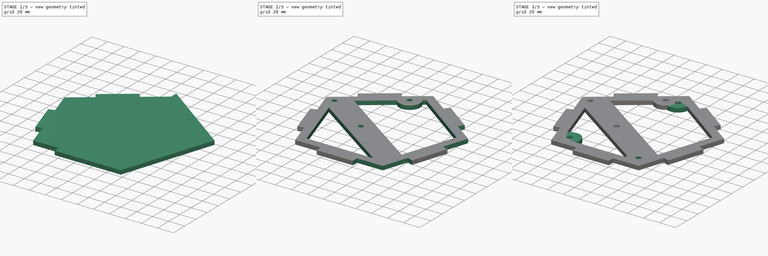
[diagram: build sequence overview — one tinted view per stage of 3, left to right]
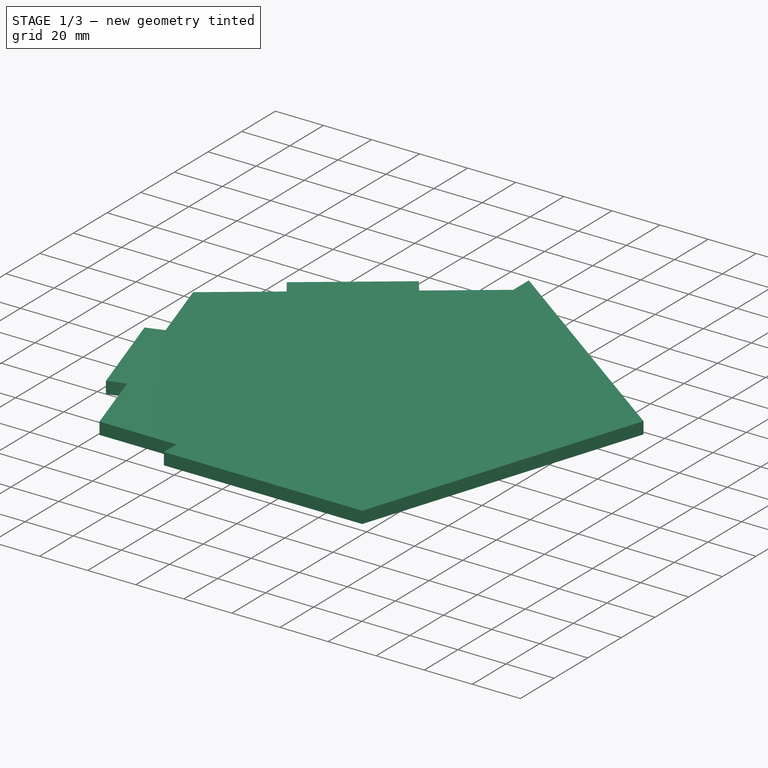
[diagram: stage 1 of 3 — iso view after this stage's code; geometry added in this stage tinted green]
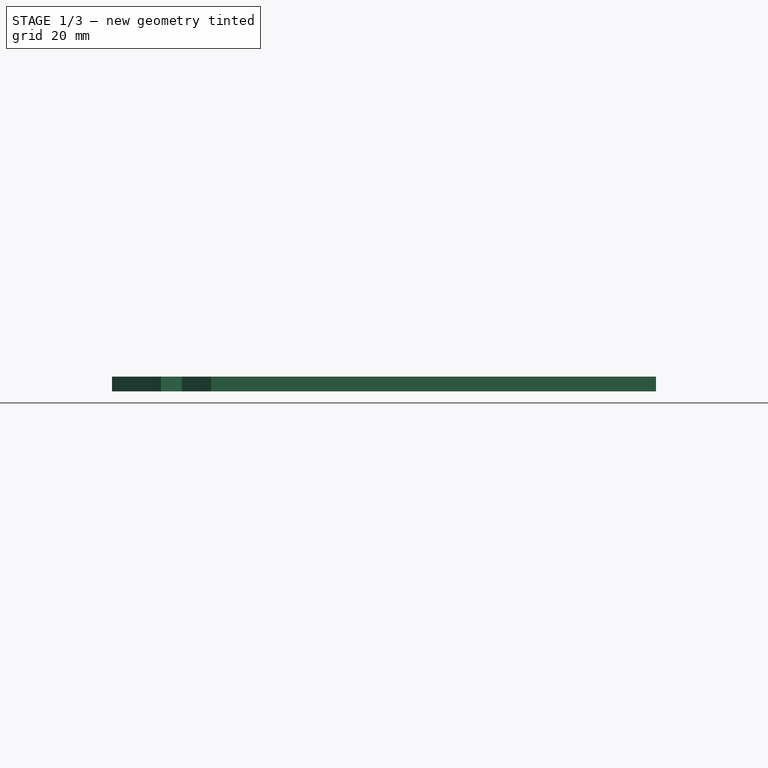
[diagram: stage 1 of 3 — front view after this stage's code; geometry added in this stage tinted green]
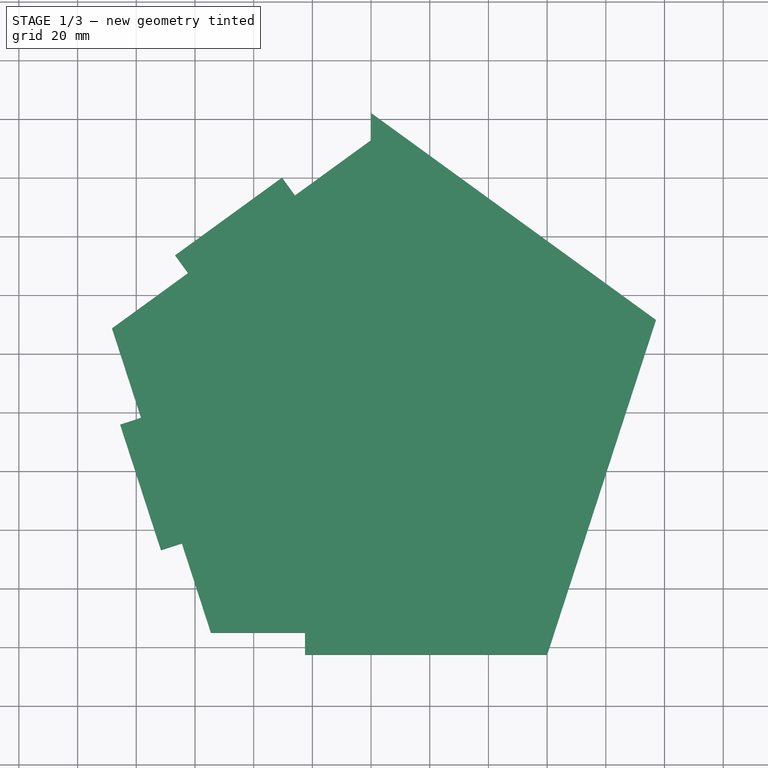
[diagram: stage 1 of 3 — top view after this stage's code; geometry added in this stage tinted green]
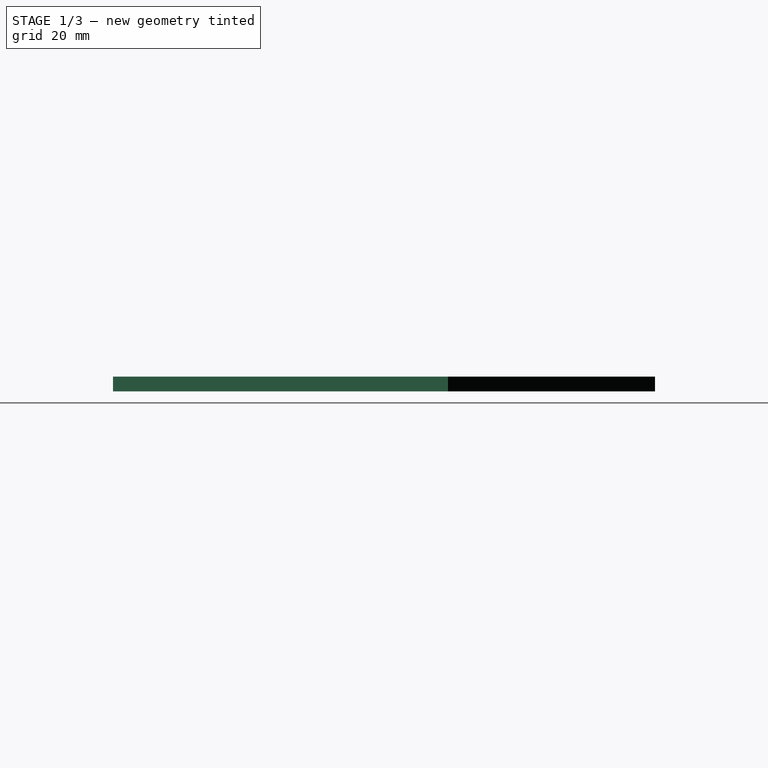
[diagram: stage 1 of 3 — right view after this stage's code; geometry added in this stage tinted green]
FCSTD DOCUMENT  (FreeCAD 0.15R4671 (Git))
Label: etageInterieur
License: All rights reserved
LicenseURL: http://fr.wikipedia.org/wiki/<copyright redacted>
objects: Sketcher::SketchObject×6, PartDesign::Pocket×4, PartDesign::Pad×2, PartDesign::Mirrored×1
note: 19 computed .brp shape members not serialized (recipe doc carries the construction recipe); baked Part::Feature solids carry a one-line shape summary decoded from their .brp

FEATURE [Sketcher::SketchObject] Sketch  label="Pentagone_Sketch"
  sketch-geometry (6):
    g0: LineSegment StartX=0 StartY=102.078 StartZ=0 EndX=-97.082 EndY=31.5439 EndZ=0
    g1: LineSegment StartX=-97.082 StartY=31.5439 StartZ=0 EndX=-60 EndY=-82.5829 EndZ=0
    g2: LineSegment StartX=-60 StartY=-82.5829 StartZ=0 EndX=60 EndY=-82.5829 EndZ=0
    g3: LineSegment StartX=60 StartY=-82.5829 StartZ=0 EndX=97.082 EndY=31.5439 EndZ=0
    g4: LineSegment StartX=97.082 StartY=31.5439 StartZ=0 EndX=0 EndY=102.078 EndZ=0
    g5: Circle [constr] CenterX=0 CenterY=0 CenterZ=0 NormalX=0 NormalY=0 NormalZ=1 Radius=102.078
  constraints (15):
    c: Coincident(g0,g1)
    c: Coincident(g1,g2)
    c: Coincident(g2,g3)
    c: Coincident(g3,g4)
    c: Coincident(g4,g0)
    c: Equal(g0, g1-g4) x4
    c: PointOnObject(g0,g5)
    c: PointOnObject(g1,g5)
    c: PointOnObject(g2,g5)
    c: PointOnObject(g3,g5)
    c: PointOnObject(g4,g5)
    c: Coincident(g2,g-1)
    c: Distance(g0) = 120
    c: Coincident(g5,g-1)
    c: PointOnObject(g0,g-2)
FEATURE [PartDesign::Pad] Pad  label="Pentagone_Pad"
  Length = 5
  Length2 = 100
  Sketch = -> Sketch
  Type = 0
FEATURE [Sketcher::SketchObject] Sketch001
  ExternalGeometry = -> [Pad]
  Placement = pos=(0,0,5) rot=(0,0,1;0rad)
  Support = -> Pad [Face7]
  sketch-geometry (17):
    g0: LineSegment StartX=-97.082 StartY=31.5439 StartZ=0 EndX=-66.7439 EndY=53.5858 EndZ=0
    g1: LineSegment StartX=-66.7439 StartY=53.5858 StartZ=0 EndX=-62.3355 EndY=47.5182 EndZ=0
    g2: LineSegment StartX=-25.9297 StartY=73.9685 StartZ=0 EndX=-30.3381 EndY=80.0362 EndZ=0
    g3: LineSegment StartX=-30.3381 StartY=80.0362 StartZ=0 EndX=0 EndY=102.078 EndZ=0
    g4: LineSegment StartX=-78.361 StartY=-1.80313 StartZ=0 EndX=-85.4939 EndY=-4.12075 EndZ=0
    g5: LineSegment StartX=-85.4939 StartY=-4.12075 StartZ=0 EndX=-97.082 EndY=31.5439 EndZ=0
    g6: LineSegment StartX=-71.5881 StartY=-46.9183 StartZ=0 EndX=-64.4552 EndY=-44.6007 EndZ=0
    g7: LineSegment StartX=-60 StartY=-82.5829 StartZ=0 EndX=-71.5881 EndY=-46.9183 EndZ=0
    g8: LineSegment StartX=-22.5 StartY=-75.0829 StartZ=0 EndX=-22.5 EndY=-82.5829 EndZ=0
    g9: LineSegment StartX=0 StartY=92.8076 StartZ=0 EndX=0 EndY=102.078 EndZ=0
    g10: LineSegment StartX=-25.9297 StartY=73.9685 StartZ=0 EndX=0 EndY=92.8076 EndZ=0
    g11: LineSegment StartX=-62.3355 StartY=47.5182 StartZ=0 EndX=-88.2653 EndY=28.6791 EndZ=0
    g12: LineSegment StartX=-78.361 StartY=-1.80313 StartZ=0 EndX=-88.2653 EndY=28.6791 EndZ=0
    g13: LineSegment StartX=-64.4552 StartY=-44.6007 StartZ=0 EndX=-54.5509 EndY=-75.0829 EndZ=0
    g14: LineSegment StartX=-22.5 StartY=-75.0829 StartZ=0 EndX=-54.5509 EndY=-75.0829 EndZ=0
    g15: LineSegment StartX=-30.3381 StartY=80.0362 StartZ=0 EndX=0 EndY=102.078 EndZ=0
    g16: LineSegment StartX=-60 StartY=-82.5829 StartZ=0 EndX=-22.5 EndY=-82.5829 EndZ=0
  constraints (49):
    c: PointOnObject(g0,g-3)
    c: Coincident(g0,g1)
    c: Perpendicular(g-3,g1)
    c: Distance(g1) = 7.5
    c: PointOnObject(g2,g-3)
    c: Coincident(g2,g3)
    c: Equal(g1,g2)
    c: PointOnObject(g4,g-4)
    c: Coincident(g4,g5)
    c: PointOnObject(g6,g-4)
    c: Coincident(g7,g6)
    c: Perpendicular(g-4,g6)
    c: Vertical(g8)
    c: PointOnObject(g9,g-2)
    c: Distance(g2,g1) = 45
    c: Coincident(g9,g-3)
    c: Coincident(g10,g2)
    c: Coincident(g10,g9)
    c: Coincident(g11,g1)
    c: Perpendicular(g10,g2)
    c: Perpendicular(g11,g1)
    c: Coincident(g12,g4)
    c: Perpendicular(g12,g4)
    c: Coincident(g13,g6)
    c: Coincident(g14,g8)
    c: Horizontal(g14)
    c: Perpendicular(g6,g13)
    c: Coincident(g11,g12)
    c: Perpendicular(g-4,g4)
    c: Perpendicular(g-3,g2)
    c: Coincident(g13,g14)
    c: Equal(g2,g1)
    c: Equal(g1,g4)
    c: Equal(g4,g6)
    c: Equal(g6,g8)
    c: Equal(g11,g10)
    c: Distance(g4,g6) = 45
    c: Equal(g12,g13)
    c: Equal(g14,g13)
    c: Coincident(g15,g2)
    c: Coincident(g15,g9)
    c: PointOnObject(g8,g-5)
    c: Coincident(g0,g-4)
    c: Coincident(g5,g0)
    c: Coincident(g3,g9)
    c: Coincident(g7,g-5)
    c: Horizontal(g16)
    c: Coincident(g16,g8)
    c: Coincident(g16,g7)
FEATURE [PartDesign::Pocket] Pocket  label="AttachLeft_Pocket"
  Length = 5
  Sketch = -> Sketch001
  Type = 1
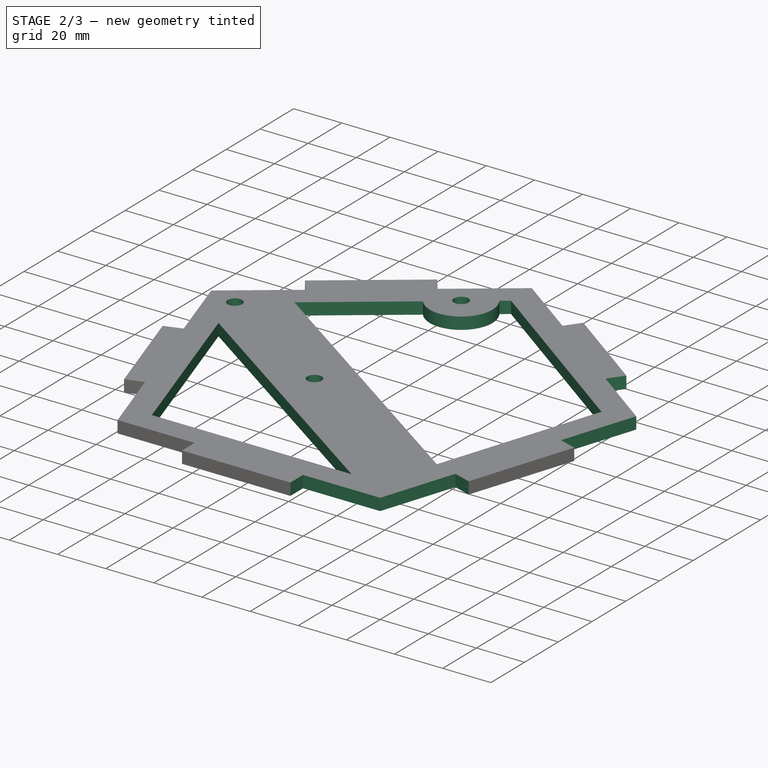
[diagram: stage 2 of 3 — iso view after this stage's code; geometry added in this stage tinted green]
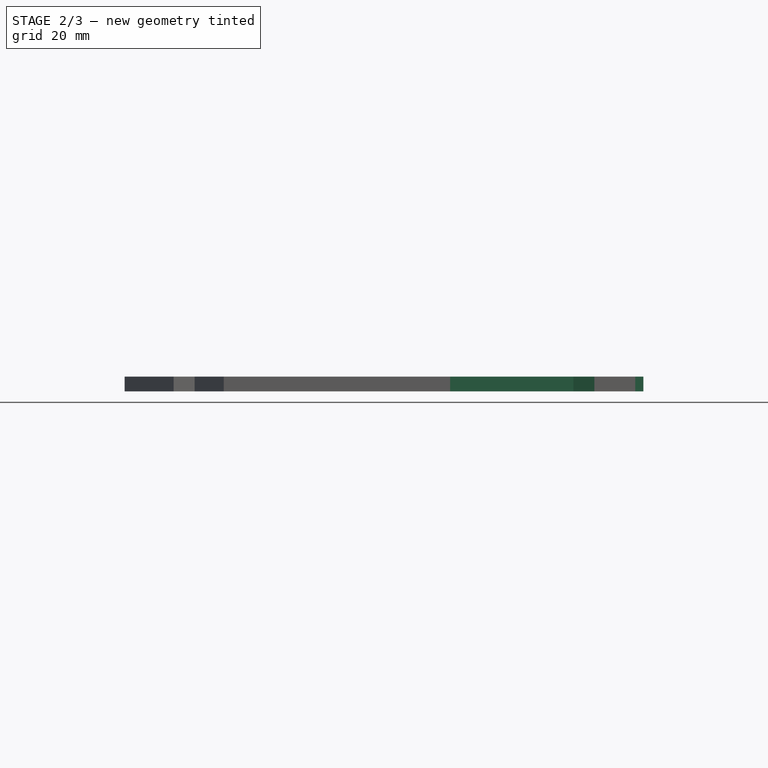
[diagram: stage 2 of 3 — front view after this stage's code; geometry added in this stage tinted green]
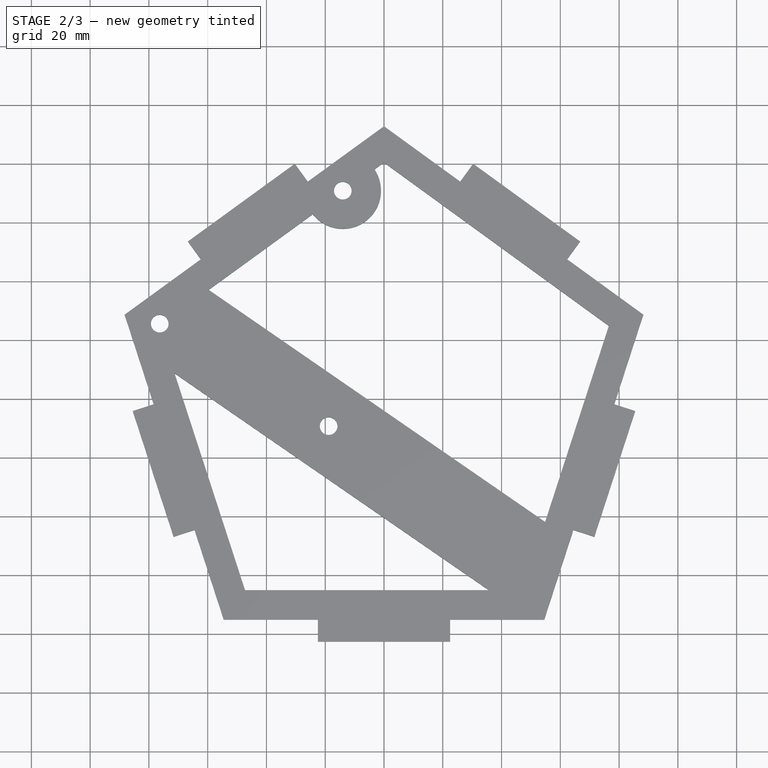
[diagram: stage 2 of 3 — top view after this stage's code; geometry added in this stage tinted green]
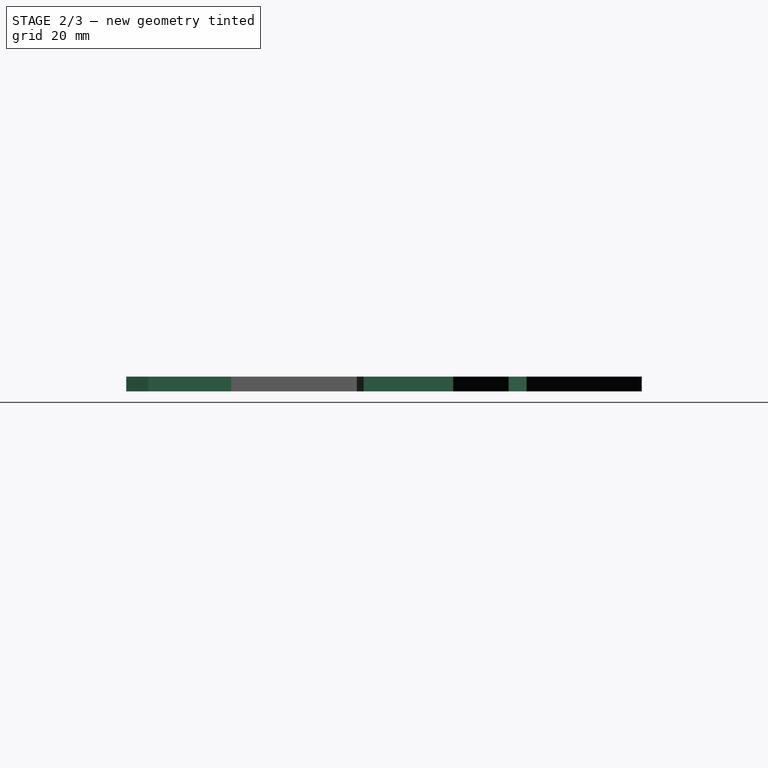
[diagram: stage 2 of 3 — right view after this stage's code; geometry added in this stage tinted green]
FEATURE [PartDesign::Mirrored] Mirrored  label="AttachAll_Mirrored"
  MirrorPlane = -> Sketch001 [V_Axis]
  Originals = -> [Pocket]
FEATURE [Sketcher::SketchObject] Sketch002  label="PilotGoPro_Sketch002"
  ExternalGeometry = -> [Mirrored]
  Placement = pos=(0,0,5) rot=(0,0,1;0rad)
  Support = -> Mirrored [Face5]
  sketch-geometry (15):
    g0: LineSegment [constr] StartX=-82.5956 StartY=26.618 StartZ=0 EndX=-13.0201 EndY=77.1676 EndZ=0
    g1: LineSegment [constr] StartX=-13.0201 StartY=77.1676 StartZ=0 EndX=30.476 EndY=17.3003 EndZ=0
    g2: LineSegment [constr] StartX=30.476 StartY=17.3003 StartZ=0 EndX=-39.0995 EndY=-33.2492 EndZ=0
    g3: LineSegment [constr] StartX=-39.0995 StartY=-33.2492 StartZ=0 EndX=-82.5956 EndY=26.618 EndZ=0
    g4: Circle CenterX=-76.31 CenterY=25.6225 CenterZ=0 NormalX=0 NormalY=0 NormalZ=1 Radius=3
    g5: Circle CenterX=-14.0157 CenterY=70.882 CenterZ=0 NormalX=0 NormalY=0 NormalZ=1 Radius=3
    g6: Circle CenterX=-18.8328 CenterY=-9.25413 CenterZ=0 NormalX=0 NormalY=0 NormalZ=1 Radius=3
    g7: LineSegment [constr] StartX=-79.9505 StartY=22.9775 StartZ=0 EndX=-76.31 EndY=25.6225 EndZ=0
    g8: LineSegment [constr] StartX=-76.31 StartY=25.6225 StartZ=0 EndX=-78.955 EndY=29.2631 EndZ=0
    g9: LineSegment [constr] StartX=-14.0157 StartY=70.882 StartZ=0 EndX=-10.3751 EndY=73.527 EndZ=0
    g10: LineSegment [constr] StartX=-14.0157 StartY=70.882 StartZ=0 EndX=-16.6607 EndY=74.5225 EndZ=0
    g11: LineSegment [constr] StartX=-18.8328 StartY=-9.25413 StartZ=0 EndX=-43.5079 EndY=-27.1816 EndZ=0
    g12: LineSegment [constr] StartX=-18.8328 StartY=-9.25413 StartZ=0 EndX=-14.4245 EndY=-15.3218 EndZ=0
    g13: LineSegment [constr] StartX=-82.5956 StartY=26.618 StartZ=0 EndX=-86.6407 EndY=23.6791 EndZ=0
    g14: LineSegment [constr] StartX=-62.3355 StartY=47.5182 StartZ=0 EndX=-59.3966 EndY=43.4731 EndZ=0
  constraints (45):
    c: Coincident(g0,g1)
    c: Coincident(g1,g2)
    c: Coincident(g2,g3)
    c: Coincident(g3,g0)
    c: Distance(g0) = 86
    c: Distance(g3) = 74
    c: Radius(g4) = 3
    c: Equal(g4,g5)
    c: Equal(g4,g6)
    c: Perpendicular(g0,g3)
    c: Perpendicular(g1,g0)
    c: Perpendicular(g2,g1)
    c: PointOnObject(g7,g3)
    c: Coincident(g7,g4)
    c: Perpendicular(g3,g7)
    c: Distance(g7) = 4.5
    c: Coincident(g8,g4)
    c: PointOnObject(g8,g0)
    c: Perpendicular(g0,g8)
    c: Equal(g7,g8)
    c: Coincident(g9,g5)
    c: PointOnObject(g9,g1)
    c: Perpendicular(g1,g9)
    c: Equal(g9,g7)
    c: Coincident(g10,g5)
    c: PointOnObject(g10,g0)
    c: Perpendicular(g0,g10)
    c: Equal(g10,g8)
    c: Coincident(g11,g6)
    c: PointOnObject(g11,g3)
    c: Perpendicular(g3,g11)
    c: Distance(g11) = 30.5
    c: Coincident(g12,g6)
    c: PointOnObject(g12,g2)
    c: Perpendicular(g2,g12)
    c: Distance(g12) = 7.5
    c: Parallel(g0,g-3)
    c: Coincident(g13,g0)
    c: PointOnObject(g13,g-5)
    c: Perpendicular(g13,g3)
    c: Distance(g13) = 5
    c: Coincident(g14,g-4)
    c: PointOnObject(g14,g0)
    c: Perpendicular(g0,g14)
    c: Distance(g14) = 5
FEATURE [PartDesign::Pocket] Pocket001  label="ScrewHoles_Pocket001"
  Length = 5
  Sketch = -> Sketch002
  Type = 1
FEATURE [Sketcher::SketchObject] Sketch003  label="FreeSpaceForCable_Sketch003"
  ExternalGeometry = -> [Pocket001]
  Placement = pos=(0,0,5) rot=(0,0,1;0rad)
  Support = -> Pocket001 [Face5]
  sketch-geometry (20):
    g0: LineSegment [constr] StartX=0 StartY=80.4469 StartZ=0 EndX=-76.5096 EndY=24.8595 EndZ=0
    g1: LineSegment [constr] StartX=-76.5096 StartY=24.8595 StartZ=0 EndX=-47.2855 EndY=-65.0829 EndZ=0
    g2: LineSegment [constr] StartX=-47.2855 StartY=-65.0829 StartZ=0 EndX=47.2855 EndY=-65.0829 EndZ=0
    g3: LineSegment [constr] StartX=47.2855 StartY=-65.0829 StartZ=0 EndX=76.5096 EndY=24.8595 EndZ=0
    g4: LineSegment StartX=76.5096 StartY=24.8595 StartZ=0 EndX=0 EndY=80.4469 EndZ=0
    g5: Circle [constr] CenterX=0 CenterY=0 CenterZ=0 NormalX=0 NormalY=0 NormalZ=1 Radius=80.4469
    g6: LineSegment [constr] StartX=-62.3355 StartY=47.5182 StartZ=0 EndX=-56.4577 EndY=39.428 EndZ=0
    g7: LineSegment StartX=-59.634 StartY=37.1203 StartZ=0 EndX=54.8325 EndY=-41.8556 EndZ=0
    g8: LineSegment StartX=-71.2563 StartY=8.6915 StartZ=0 EndX=35.6713 EndY=-65.0829 EndZ=0
    g9: LineSegment [constr] StartX=-27.3513 StartY=-21.6006 StartZ=0 EndX=-10.3144 EndY=3.09237 EndZ=0
    g10: LineSegment [constr] StartX=54.8325 StartY=-41.8556 StartZ=0 EndX=37.7956 EndY=-66.5486 EndZ=0
    g11: LineSegment StartX=-47.2855 StartY=-65.0829 StartZ=0 EndX=-71.2563 EndY=8.6915 EndZ=0
    g12: LineSegment StartX=76.5096 StartY=24.8595 StartZ=0 EndX=54.8325 EndY=-41.8556 EndZ=0
    g13: LineSegment StartX=35.6713 StartY=-65.0829 StartZ=0 EndX=-47.2855 EndY=-65.0829 EndZ=0
    g14: Circle [constr] CenterX=-18.8328 CenterY=-9.25413 CenterZ=0 NormalX=0 NormalY=0 NormalZ=1 Radius=9
    g15: Circle [constr] CenterX=-76.31 CenterY=25.6225 CenterZ=0 NormalX=0 NormalY=0 NormalZ=1 Radius=9
    g16: Circle [constr] CenterX=-14.0157 CenterY=70.882 CenterZ=0 NormalX=0 NormalY=0 NormalZ=1 Radius=9
    g17: ArcOfCircle CenterX=-14.0157 CenterY=70.882 CenterZ=0 NormalX=0 NormalY=0 NormalZ=1 Radius=13 StartAngle=3.80838 EndAngle=6.87303
    g18: LineSegment StartX=-59.634 StartY=37.1203 StartZ=0 EndX=-24.2312 EndY=62.8419 EndZ=0
    g19: LineSegment StartX=-3.21233 StartY=78.113 StartZ=0 EndX=0 EndY=80.4469 EndZ=0
  constraints (52):
    c: Coincident(g0,g1)
    c: Coincident(g1,g2)
    c: Coincident(g2,g3)
    c: Coincident(g3,g4)
    c: Coincident(g4,g0)
    c: Equal(g0, g1-g4) x4
    c: PointOnObject(g0,g5)
    c: PointOnObject(g1,g5)
    c: PointOnObject(g2,g5)
    c: PointOnObject(g3,g5)
    c: PointOnObject(g4,g5)
    c: Coincident(g5,g-1)
    c: PointOnObject(g0,g-2)
    c: Coincident(g6,g-5)
    c: PointOnObject(g6,g0)
    c: Perpendicular(g-5,g6)
    c: Distance(g6) = 10
    c: PointOnObject(g7,g0)
    c: PointOnObject(g7,g3)
    c: PointOnObject(g8,g1)
    c: Parallel(g8,g7)
    c: PointOnObject(g9,g8)
    c: PointOnObject(g9,g7)
    c: Perpendicular(g8,g9)
    c: Distance(g9) = 30
    c: Coincident(g10,g7)
    c: PointOnObject(g10,g8)
    c: Perpendicular(g7,g10)
    c: Equal(g10,g9)
    c: PointOnObject(g8,g2)
    c: Distance(g0,g8) = 17
    c: Coincident(g11,g1)
    c: Coincident(g11,g8)
    c: Coincident(g12,g3)
    c: Coincident(g12,g7)
    c: Coincident(g13,g8)
    c: Coincident(g13,g1)
    c: Coincident(g14,g-6)
    c: Radius(g14) = 9
    c: Coincident(g15,g-4)
    c: Equal(g15,g14)
    c: Coincident(g16,g-3)
    c: Equal(g16,g14)
    c: Coincident(g17,g16)
    c: PointOnObject(g17,g0)
    c: PointOnObject(g17,g0)
    c: Radius(g17) = 13
    c: Symmetric(g9,g9,g14)
    c: Coincident(g18,g7)
    c: Coincident(g18,g17)
    c: Coincident(g19,g17)
    c: Coincident(g19,g0)
FEATURE [PartDesign::Pocket] Pocket002  label="FreeSpaceForCable_Pocket002"
  Length = 5
  Sketch = -> Sketch003
  Type = 1
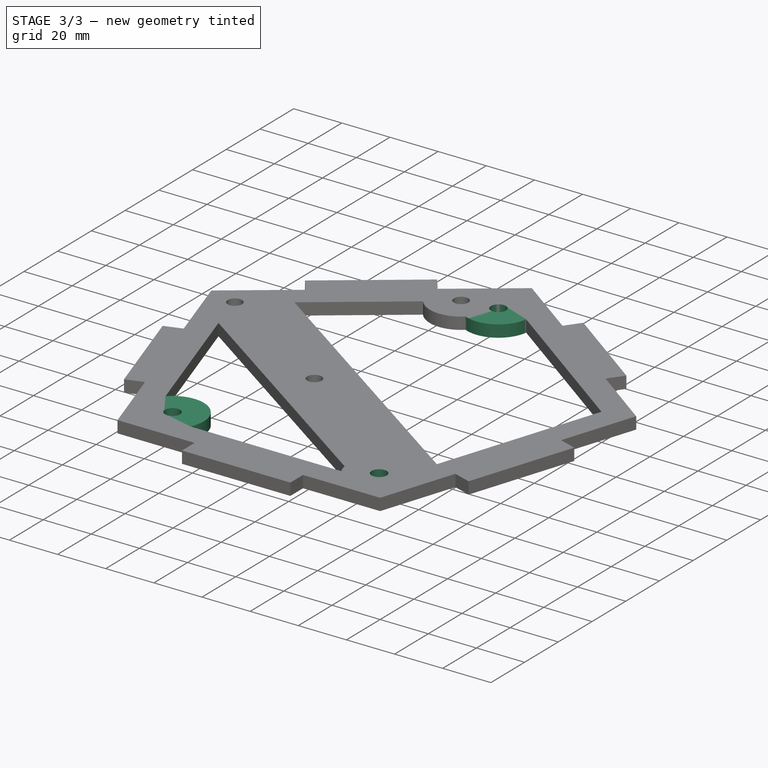
[diagram: stage 3 of 3 — iso view after this stage's code; geometry added in this stage tinted green]
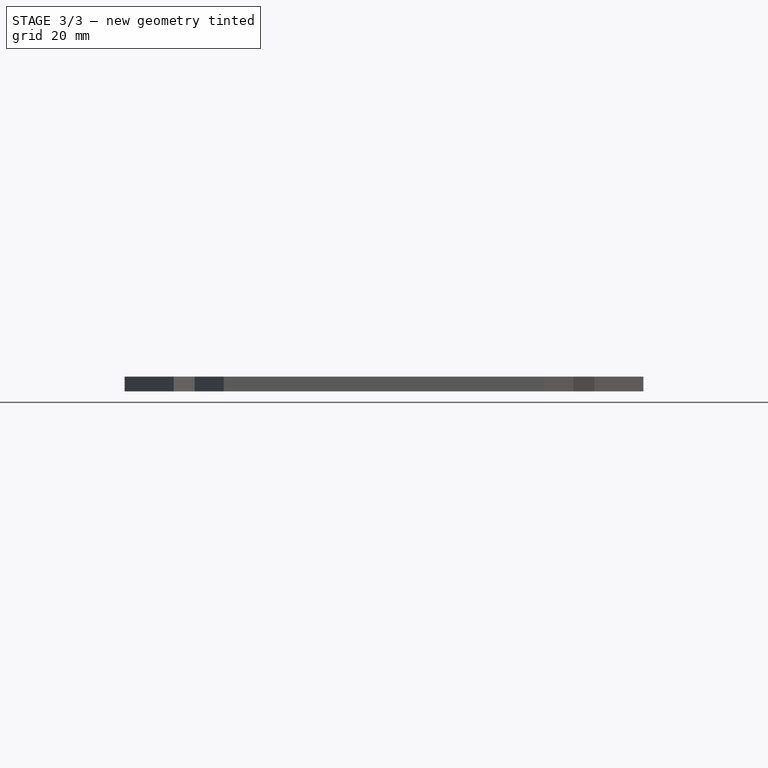
[diagram: stage 3 of 3 — front view after this stage's code; geometry added in this stage tinted green]
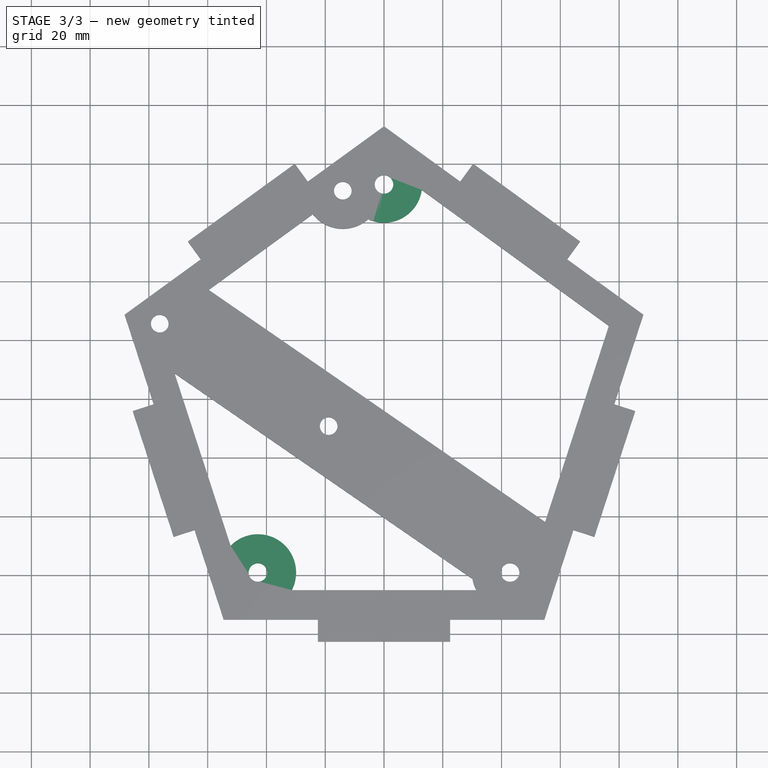
[diagram: stage 3 of 3 — top view after this stage's code; geometry added in this stage tinted green]
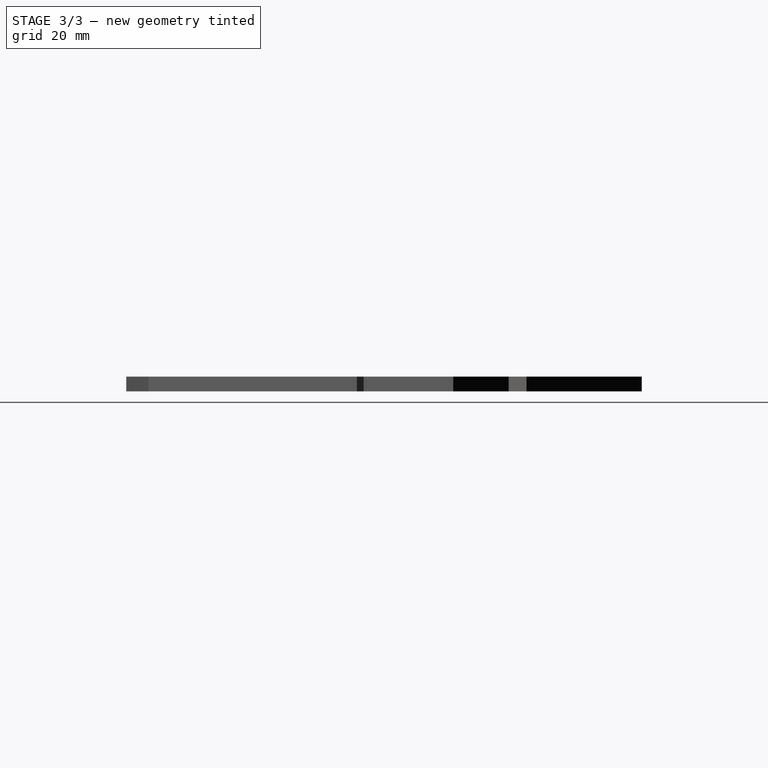
[diagram: stage 3 of 3 — right view after this stage's code; geometry added in this stage tinted green]
FEATURE [Sketcher::SketchObject] Sketch004  label="SpaceForBottomScrew_Sketch004"
  ExternalGeometry = -> [Pocket002]
  Placement = pos=(0,0,5) rot=(0,0,1;0rad)
  Support = -> Pocket002 [Face5]
  sketch-geometry (16):
    g0: LineSegment [constr] StartX=0 StartY=0 StartZ=0 EndX=-54.5509 EndY=-75.0829 EndZ=0
    g1: LineSegment [constr] StartX=0 StartY=0 StartZ=0 EndX=54.5509 EndY=-75.0829 EndZ=0
    g2: LineSegment [constr] StartX=0 StartY=0 StartZ=0 EndX=0 EndY=92.8076 EndZ=0
    g3: Circle [constr] CenterX=-42.9083 CenterY=-59.0582 CenterZ=0 NormalX=0 NormalY=0 NormalZ=1 Radius=9
    g4: Circle [constr] CenterX=42.9083 CenterY=-59.0582 CenterZ=0 NormalX=0 NormalY=0 NormalZ=1 Radius=9
    g5: Circle [constr] CenterX=0 CenterY=73 CenterZ=0 NormalX=0 NormalY=0 NormalZ=1 Radius=9
    g6: ArcOfCircle CenterX=-42.9083 CenterY=-59.0582 CenterZ=0 NormalX=0 NormalY=0 NormalZ=1 Radius=13 StartAngle=5.80132 EndAngle=8.65001
    g7: ArcOfCircle CenterX=42.9083 CenterY=-59.0582 CenterZ=0 NormalX=0 NormalY=0 NormalZ=1 Radius=13 StartAngle=3.30969 EndAngle=3.62346
    g8: ArcOfCircle CenterX=0 CenterY=73 CenterZ=0 NormalX=0 NormalY=0 NormalZ=1 Radius=13 StartAngle=4.28576 EndAngle=6.13674
    g9: LineSegment StartX=-52.1979 StartY=-49.9641 StartZ=0 EndX=-47.2855 EndY=-65.0829 EndZ=0
    g10: LineSegment StartX=-47.2855 StartY=-65.0829 StartZ=0 EndX=-31.3886 EndY=-65.0829 EndZ=0
    g11: LineSegment StartX=31.3886 StartY=-65.0829 StartZ=0 EndX=35.6713 EndY=-65.0829 EndZ=0
    g12: LineSegment StartX=30.0916 StartY=-61.2332 StartZ=0 EndX=35.6713 EndY=-65.0829 EndZ=0
    g13: ArcOfCircle CenterX=-14.0157 CenterY=70.882 CenterZ=0 NormalX=0 NormalY=0 NormalZ=1 Radius=13 StartAngle=5.43898 EndAngle=6.87303
    g14: LineSegment StartX=-3.21233 StartY=78.113 StartZ=0 EndX=0 EndY=80.4469 EndZ=0
    g15: LineSegment StartX=0 StartY=80.4469 StartZ=0 EndX=12.8608 EndY=71.103 EndZ=0
  constraints (42):
    c: Coincident(g0,g-1)
    c: Coincident(g0,g-3)
    c: Coincident(g1,g-1)
    c: Coincident(g1,g-4)
    c: Coincident(g2,g-1)
    c: Coincident(g2,g-5)
    c: PointOnObject(g3,g0)
    c: PointOnObject(g4,g1)
    c: PointOnObject(g5,g2)
    c: Radius(g5) = 9
    c: Equal(g5,g3)
    c: Equal(g5,g4)
    c: Distance(g-1,g3) = 73
    c: Distance(g-1,g5) = 73
    c: Distance(g-1,g4) = 73
    c: Coincident(g6,g3)
    c: PointOnObject(g6,g-6)
    c: PointOnObject(g6,g-7)
    c: Radius(g6) = 13
    c: Coincident(g7,g4)
    c: PointOnObject(g7,g-7)
    c: PointOnObject(g7,g-8)
    c: Radius(g7) = 13
    c: Coincident(g8,g5)
    c: PointOnObject(g8,g-9)
    c: PointOnObject(g8,g-10)
    c: Radius(g8) = 13
    c: Coincident(g9,g6)
    c: Coincident(g9,g-7)
    c: Coincident(g10,g6)
    c: Coincident(g10,g9)
    c: Coincident(g11,g7)
    c: Coincident(g11,g-8)
    c: Coincident(g12,g7)
    c: Coincident(g12,g11)
    c: Coincident(g13,g-11)
    c: Radius(g13) = 13
    c: Coincident(g13,g8)
    c: Coincident(g14,g13)
    c: Coincident(g14,g-11)
    c: Coincident(g15,g14)
    c: Coincident(g15,g8)
FEATURE [PartDesign::Pad] Pad001  label="SpaceForBottomScrew_Pad001"
  Length = 5
  Length2 = 100
  Reversed = true
  Sketch = -> Sketch004
  Type = 0
  UpToFace = -> Pocket002 [Face3]
FEATURE [Sketcher::SketchObject] Sketch005
  ExternalGeometry = -> [Pad001]
  Placement = pos=(0,0,5) rot=(0,0,1;0rad)
  Support = -> Pad001 [Face41]
  sketch-geometry (6):
    g0: LineSegment [constr] StartX=0 StartY=0 StartZ=0 EndX=-54.5509 EndY=-75.0829 EndZ=0
    g1: LineSegment [constr] StartX=0 StartY=0 StartZ=0 EndX=54.5509 EndY=-75.0829 EndZ=0
    g2: LineSegment [constr] StartX=0 StartY=0 StartZ=0 EndX=0 EndY=92.8076 EndZ=0
    g3: Circle CenterX=-42.9083 CenterY=-59.0582 CenterZ=0 NormalX=0 NormalY=0 NormalZ=1 Radius=3.15
    g4: Circle CenterX=42.9083 CenterY=-59.0582 CenterZ=0 NormalX=0 NormalY=0 NormalZ=1 Radius=3.15
    g5: Circle CenterX=0 CenterY=73 CenterZ=0 NormalX=0 NormalY=0 NormalZ=1 Radius=3.15
  constraints (15):
    c: Coincident(g0,g-1)
    c: Coincident(g0,g-3)
    c: Coincident(g1,g-1)
    c: Coincident(g1,g-4)
    c: Coincident(g2,g-1)
    c: Coincident(g2,g-5)
    c: PointOnObject(g3,g0)
    c: Distance(g-1,g3) = 73
    c: Radius(g3) = 3.15
    c: PointOnObject(g4,g1)
    c: Equal(g4,g3)
    c: Distance(g-1,g4) = 73
    c: PointOnObject(g5,g2)
    c: Equal(g5,g3)
    c: Distance(g-1,g5) = 73
FEATURE [PartDesign::Pocket] Pocket003
  Length = 5
  Sketch = -> Sketch005
  Type = 1
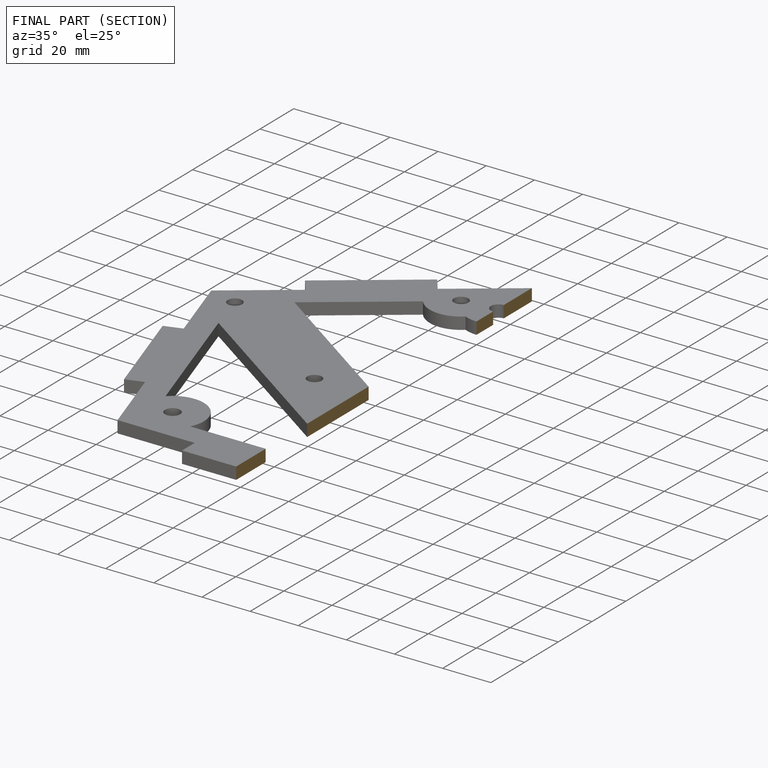
[diagram: finished part — half-section view (interior)]
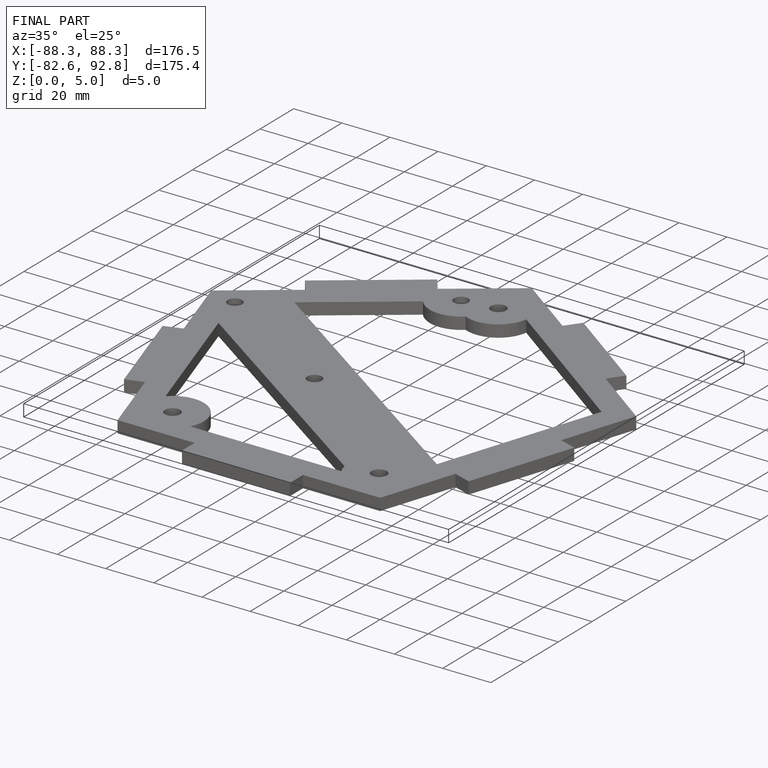
[diagram: finished part — iso view with bounding-box wireframe]
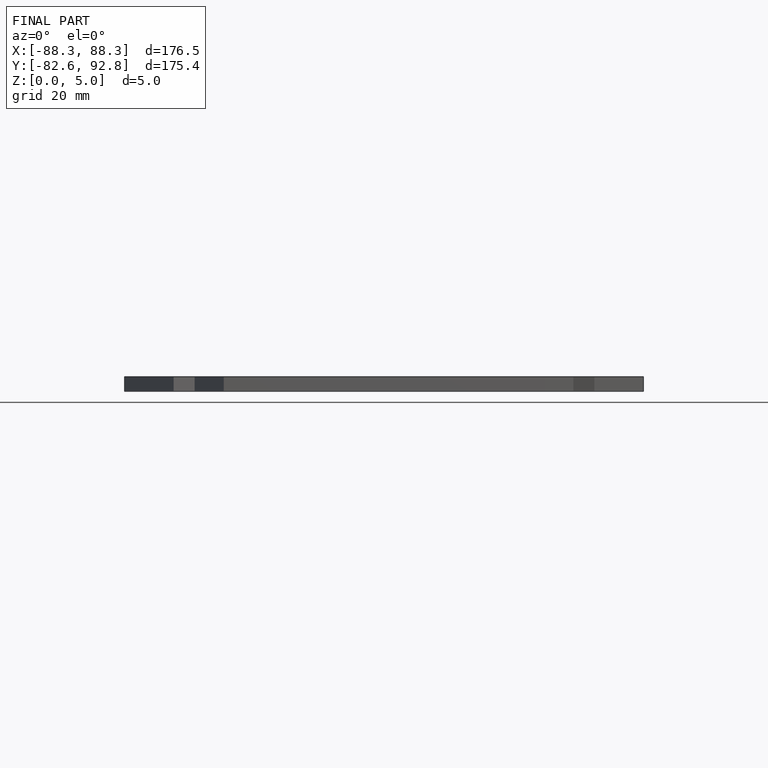
[diagram: finished part — front view with bounding-box wireframe]
